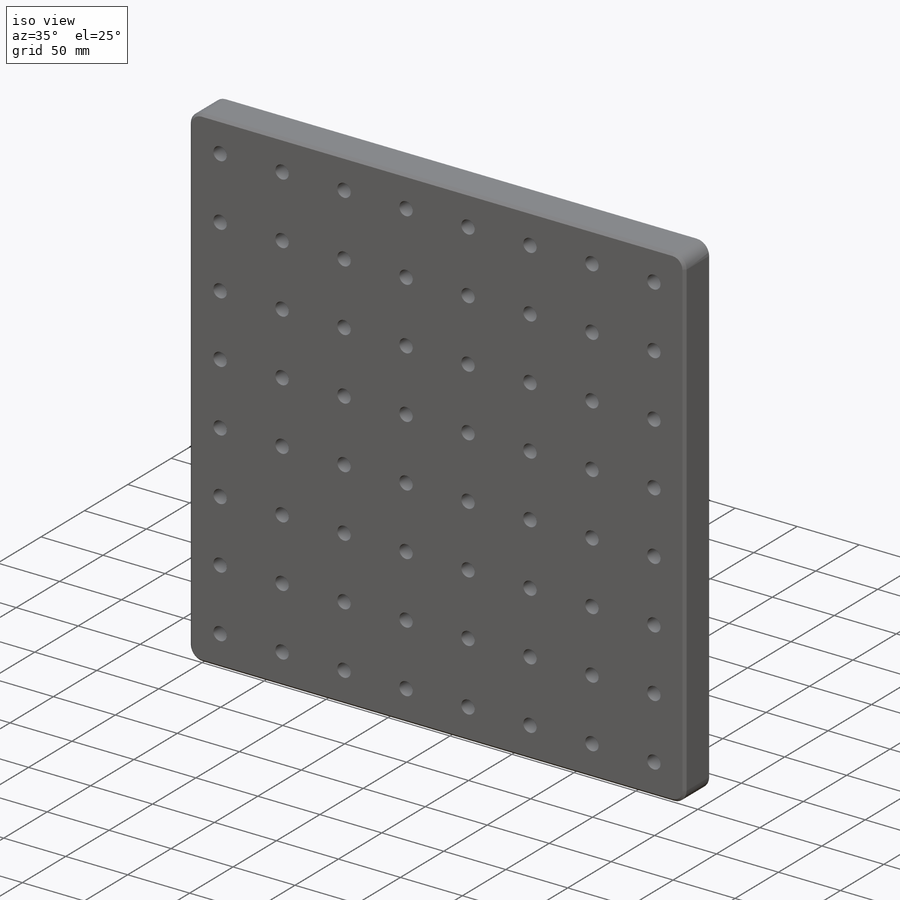
[diagram: iso view]
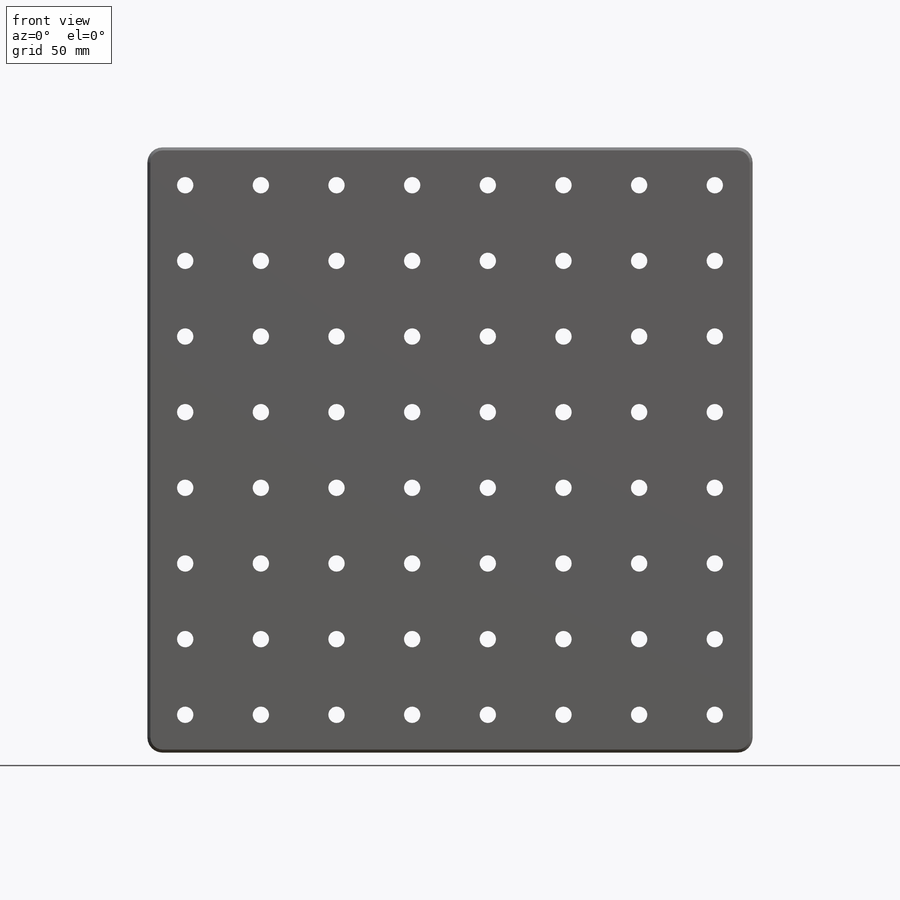
[diagram: front view]
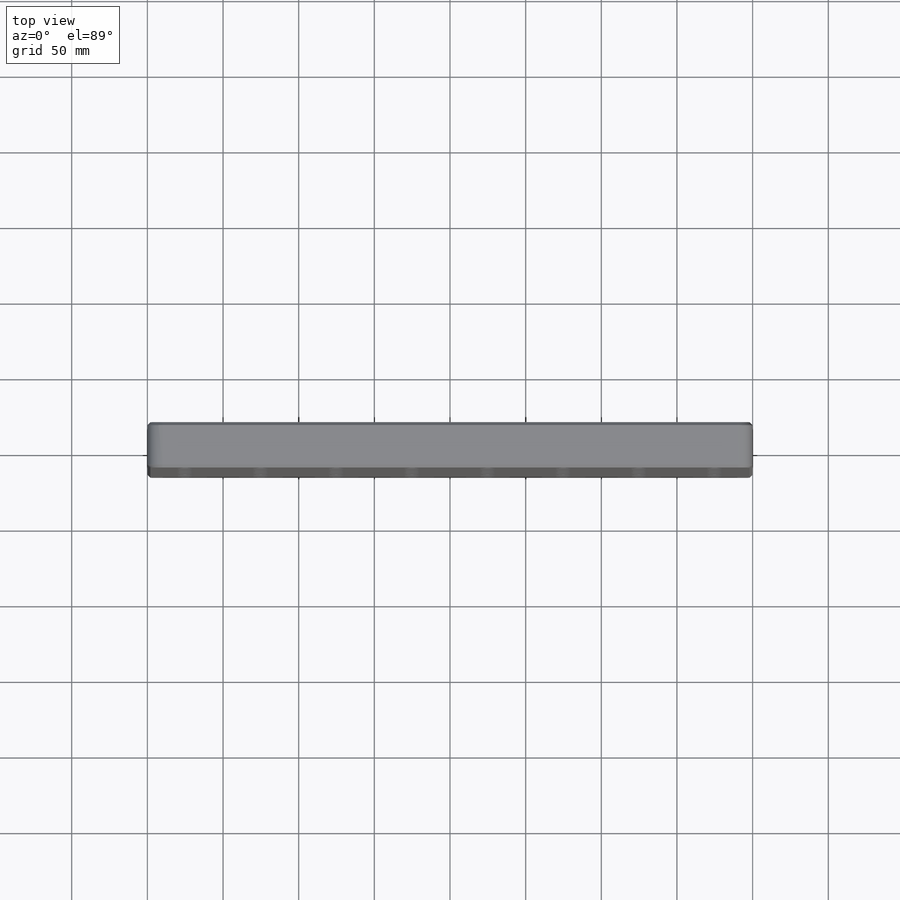
[diagram: top view]
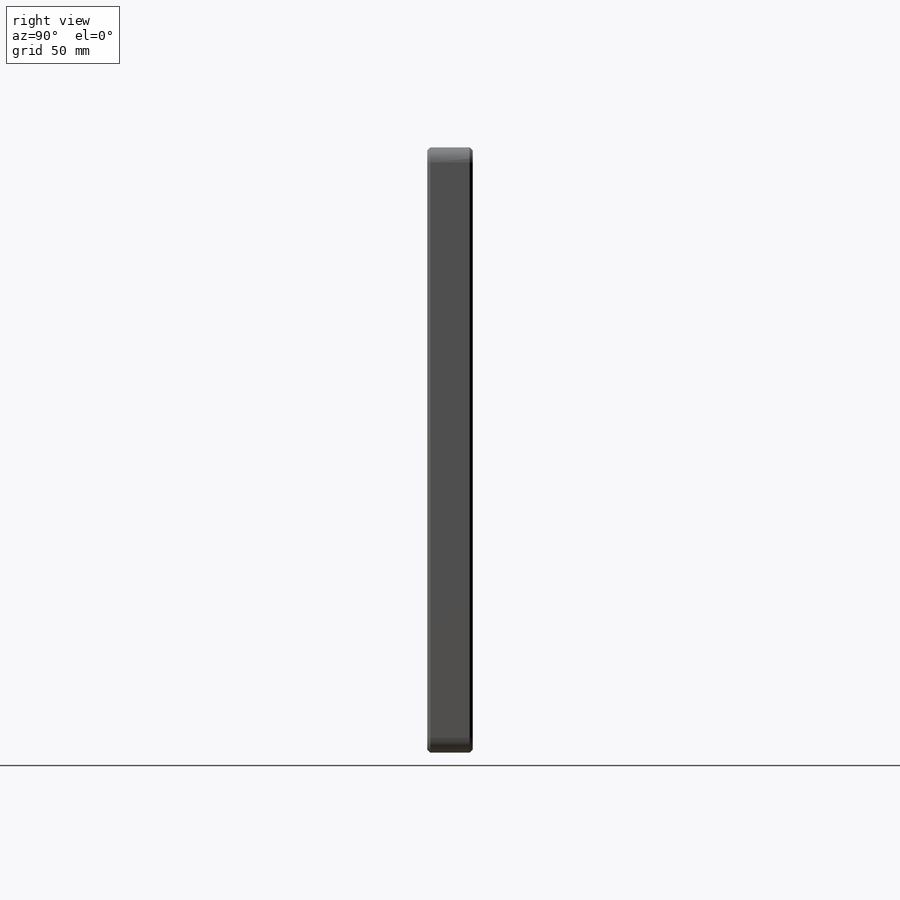
[diagram: right view]
SOLIDWORKS PART (.sldprt)
format: sldprt  version: not decoded by parser v0  size: 346,624 bytes
history: native  units: mm
features: sketch x3, chamfer x2, material x1, extrude x1, hole x1, thread x1, pattern_linear x1, fillet x1 (+11 scaffold rows collapsed)
feature tree (22):
  scaffold x11  (default folders/planes/origin — collapsed)
  material  "Material <not specified>"
  sketch  "Sketch1"  dims[D1=400.0mm D2=400.0mm]
  extrude  "Boss-Extrude1"  Depth=30mm
  hole  "M12x1.25 Tapped Hole1"  Diameter=10.8mm Depth=30mm
  sketch  "Sketch3"  dims[D1=25.0mm D2=25.0mm]
  sketch  "Sketch2"  dims[hole-wizard template sketch: 46 standard entries collapsed; hole parameters kept: c15.Tap Drill Dia.=10.8mm c15.Tap Drill Depth=30.0mm c15.D3=~14.816244mm c15.Drill Angle=118.0deg]
  thread  "Hole Thread1"  Diameter=30mm  [1 undecoded]
  pattern_linear  "LPattern1"  Count1=8 Count2=8 Spacing1=50mm Spacing2=50mm
  fillet  "Fillet1"  Radius=10mm
  chamfer  "Chamfer1"  Distance=2mm Angle=45deg
  chamfer  "Chamfer2"  Distance=2mm Angle=45deg
decode coverage: 10 of 10 modeling features carry decoded parameters
note: ~ marks probable driven/reference dimensions
note: 1 parameter value undecoded
note: suppression state not decoded; provenance and decode notes live in map.json
